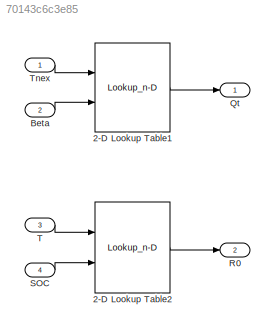
MODEL slx_70143c6c3e85
KIND model
CONFIG AbsTol = auto
CONFIG FixedStep = auto
CONFIG MaxStep = auto
CONFIG MinStep = auto
CONFIG RelTol = 1e-3
CONFIG SampleTimeConstraint = Unconstrained
CONFIG Solver = FixedStepAuto
CONFIG SolverMode = Auto
CONFIG SolverName = FixedStepAuto
CONFIG StartTime = 0.0
CONFIG StopTime = inf
BLOCK [Lookup_n-D] 2-D Lookup Table1
  BreakpointsForDimension1 = [-30,-20,-10,0,10,25,40,50]
  BreakpointsForDimension2 = [0.3,1,2,3,4]
  ExtrapMethod = Cubic spline
  IndexSearchMethod = Linear search
  InternalRulePriority = Speed
  InterpMethod = Cubic spline
  Ports = [2, 1]
  RndMeth = Simplest
  Table = reshape([62.33,77.61,86.6,89.51,93.42,97.24,100.4,91.13,60.23,77.6,86.25,89.29,92.7,96.56,100,90.82,40.68,59.57,76.58,85.41,90.13,94.43,98.06,89.05,20.82,38.87,69.35,82.54,85.95,90.44,95.66,86.51,0,10.56,54.67,79.48,84.13,88.81,92.38,83.89],8,5)
BLOCK [Lookup_n-D] 2-D Lookup Table2
  BreakpointsForDimension1 = [-20,-10,0,25,30,40,50]
  BreakpointsForDimension2 = [0.1,0.2,0.3,0.4,0.5,0.6,0.7,0.8,0.9,1]
  ExtrapMethod = Cubic spline
  IndexSearchMethod = Linear search
  InternalRulePriority = Speed
  InterpMethod = Cubic spline
  Ports = [2, 1]
  RndMeth = Simplest
  Table = reshape([15.7284,10.4653,5.8162,2.8337,2.66,2.6,3.35,12.5613,8.5262,3.7898,1.7723,1.73,1.7,2.23,12.202,7.9038,3.0792,1.6757,1.65,1.62,1.93,12.1928,7.8950,2.8073,1.5792,1.55,1.48,1.82,12.2721,7.8862,2.7107,1.4827,1.47,1.45,1.75,12.0879,7.8774,2.7019,1.5616,1.53,1.44,1.67,11.9914,7.6931,2.6931,1.5528,1.51,1.48,1.63,12.158,7.8597,2.6843,1.5439,1.532,1.52,1.68,12.2369,7.9386,2.6755,1.5351,1.54,1.53,1....<+53ch>
BLOCK [Inport] Beta
  IconDisplay = Port number
  Port = 2
BLOCK [Outport] Qt
  IconDisplay = Port number
BLOCK [Outport] R0
  IconDisplay = Port number
  Port = 2
BLOCK [Inport] SOC
  IconDisplay = Port number
  Port = 4
BLOCK [Inport] T
  IconDisplay = Port number
  Port = 3
BLOCK [Inport] Tnex
  IconDisplay = Port number
LINE 2-D Lookup Table1:1 -> Qt:1
LINE 2-D Lookup Table2:1 -> R0:1
LINE Beta:1 -> 2-D Lookup Table1:2
LINE SOC:1 -> 2-D Lookup Table2:2
LINE T:1 -> 2-D Lookup Table2:1
LINE Tnex:1 -> 2-D Lookup Table1:1
